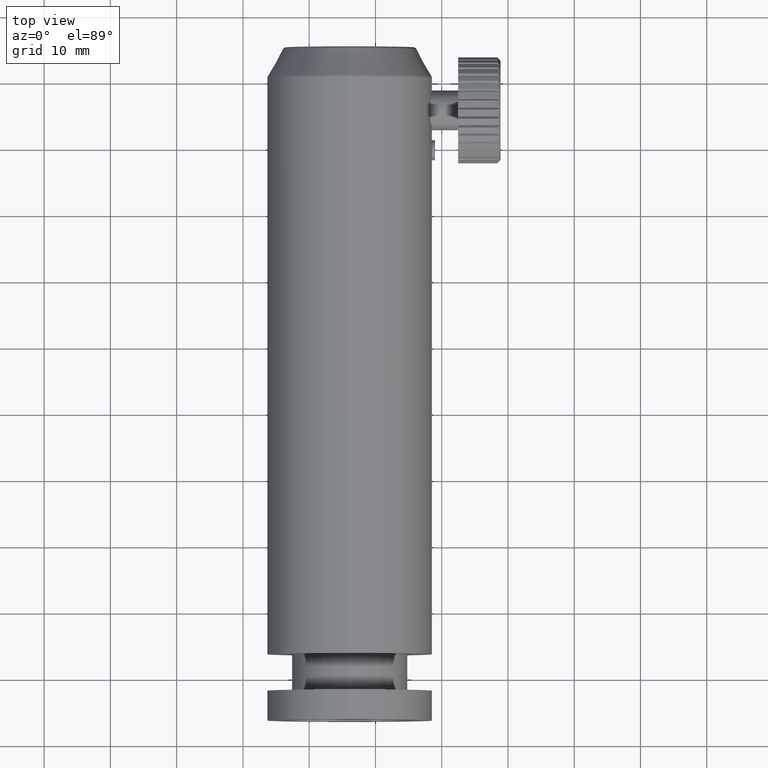
[diagram: clean part render]
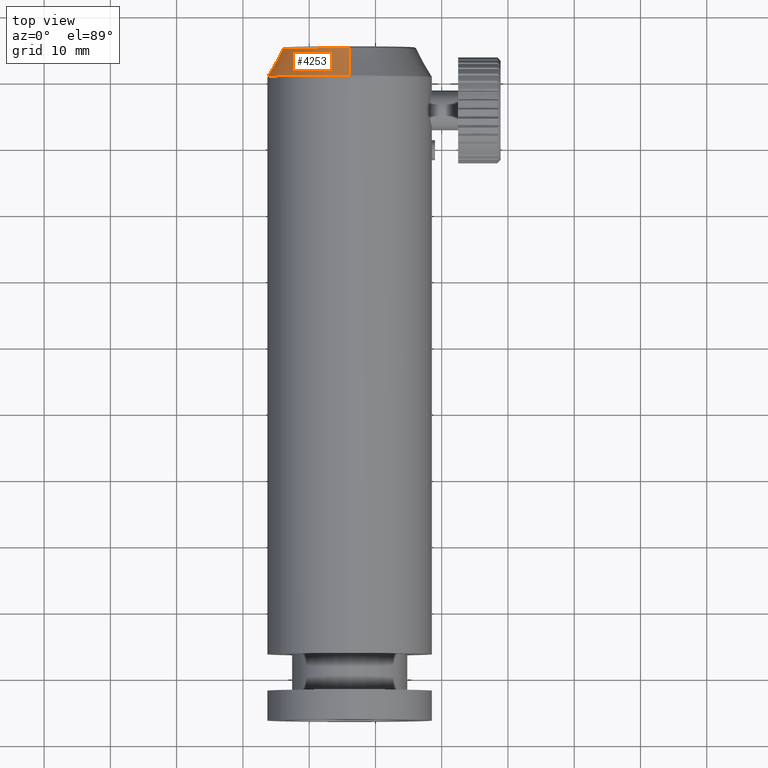
[diagram: same view with one face highlighted and labeled with its STEP entity id]
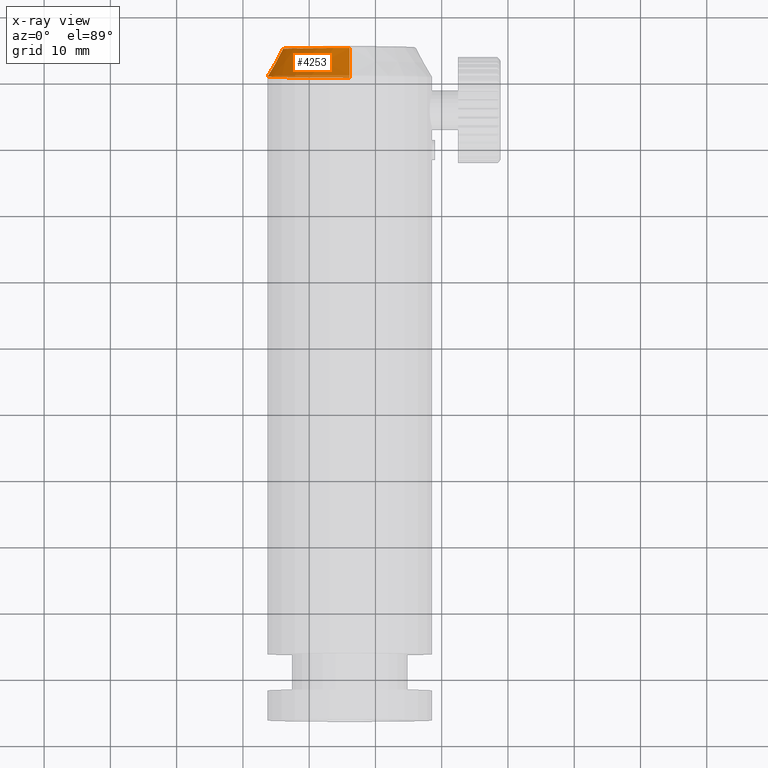
[diagram: x-ray of the same camera — body ghosted, the highlighted face saturated]
A machine part, top view. The second image highlights one B-rep face of the part: STEP entity #4253.
The next image is the same camera in x-ray: the body ghosted, the highlighted face saturated — about 8% of this face is hidden behind the body in this view.
In plain terms, the highlighted conical surface has half-angle 29.055 deg.
Its self-contained STEP definition (entity closure, byte-faithful):
#25 = VERTEX_POINT ( 'NONE', #467 ) ;
#105 = CIRCLE ( 'NONE', #868, 10.14287696356149300 ) ;
#369 = DIRECTION ( 'NONE',  ( 0.0000000000000000000, -0.8741572761215180600, -0.4856429311786675800 ) ) ;
#400 = CIRCLE ( 'NONE', #4623, 12.43707863806093500 ) ;
#467 = CARTESIAN_POINT ( 'NONE',  ( -3.891022268973183300, 85.02920940597950100, 9.142876963561493000 ) ) ;
#726 = VERTEX_POINT ( 'NONE', #3298 ) ;
#868 = AXIS2_PLACEMENT_3D ( 'NONE', #4392, #4772, #2318 ) ;
#913 = ORIENTED_EDGE ( 'NONE', *, *, #1813, .F. ) ;
#1035 = VERTEX_POINT ( 'NONE', #2015 ) ;
#1115 = AXIS2_PLACEMENT_3D ( 'NONE', #3113, #1119, #3928 ) ;
#1119 = DIRECTION ( 'NONE',  ( -0.0000000000000000000, -1.000000000000000000, -0.0000000000000000000 ) ) ;
#1225 = CARTESIAN_POINT ( 'NONE',  ( -3.891022268973185000, 80.89964639188089300, -1.000000000000000000 ) ) ;
#1253 = EDGE_CURVE ( 'NONE', #726, #1440, #400, .T. ) ;
#1440 = VERTEX_POINT ( 'NONE', #2731 ) ;
#1813 = EDGE_CURVE ( 'NONE', #25, #726, #4892, .T. ) ;
#1828 = DIRECTION ( 'NONE',  ( 5.947410611964935900E-017, -0.8741572761215180600, 0.4856429311786675800 ) ) ;
#2015 = CARTESIAN_POINT ( 'NONE',  ( -3.891022268973185000, 85.02920940597950100, -11.14287696356149500 ) ) ;
#2318 = DIRECTION ( 'NONE',  ( 0.0000000000000000000, 0.0000000000000000000, -1.000000000000000000 ) ) ;
#2462 = CONICAL_SURFACE ( 'NONE', #1115, 10.14287696356149300, 0.5070985043923775800 ) ;
#2731 = CARTESIAN_POINT ( 'NONE',  ( -3.891022268973185000, 80.89964639188089300, -13.43707863806093500 ) ) ;
#2921 = VECTOR ( 'NONE', #369, 1000.000000000000000 ) ;
#3035 = CARTESIAN_POINT ( 'NONE',  ( -3.891022268973183700, 85.02920940597950100, 9.142876963561493000 ) ) ;
#3113 = CARTESIAN_POINT ( 'NONE',  ( -3.891022268973185000, 85.02920940597950100, -1.000000000000000000 ) ) ;
#3196 = ORIENTED_EDGE ( 'NONE', *, *, #4318, .T. ) ;
#3298 = CARTESIAN_POINT ( 'NONE',  ( -3.891022268973183300, 80.89964639188089300, 11.43707863806093300 ) ) ;
#3315 = EDGE_CURVE ( 'NONE', #25, #1035, #105, .T. ) ;
#3679 = FACE_OUTER_BOUND ( 'NONE', #4479, .T. ) ;
#3680 = DIRECTION ( 'NONE',  ( 0.0000000000000000000, 0.0000000000000000000, -1.000000000000000000 ) ) ;
#3682 = ORIENTED_EDGE ( 'NONE', *, *, #1253, .F. ) ;
#3762 = ORIENTED_EDGE ( 'NONE', *, *, #3315, .T. ) ;
#3911 = VECTOR ( 'NONE', #1828, 1000.000000000000000 ) ;
#3928 = DIRECTION ( 'NONE',  ( 0.0000000000000000000, 0.0000000000000000000, -1.000000000000000000 ) ) ;
#4253 = ADVANCED_FACE ( 'NONE', ( #3679 ), #2462, .T. ) ;
#4318 = EDGE_CURVE ( 'NONE', #1035, #1440, #4571, .T. ) ;
#4392 = CARTESIAN_POINT ( 'NONE',  ( -3.891022268973185000, 85.02920940597950100, -1.000000000000000000 ) ) ;
#4425 = CARTESIAN_POINT ( 'NONE',  ( -3.891022268973185000, 85.02920940597950100, -11.14287696356149500 ) ) ;
#4479 = EDGE_LOOP ( 'NONE', ( #913, #3762, #3196, #3682 ) ) ;
#4571 = LINE ( 'NONE', #4425, #2921 ) ;
#4623 = AXIS2_PLACEMENT_3D ( 'NONE', #1225, #4974, #3680 ) ;
#4772 = DIRECTION ( 'NONE',  ( -0.0000000000000000000, -1.000000000000000000, -0.0000000000000000000 ) ) ;
#4892 = LINE ( 'NONE', #3035, #3911 ) ;
#4974 = DIRECTION ( 'NONE',  ( -0.0000000000000000000, -1.000000000000000000, -0.0000000000000000000 ) ) ;